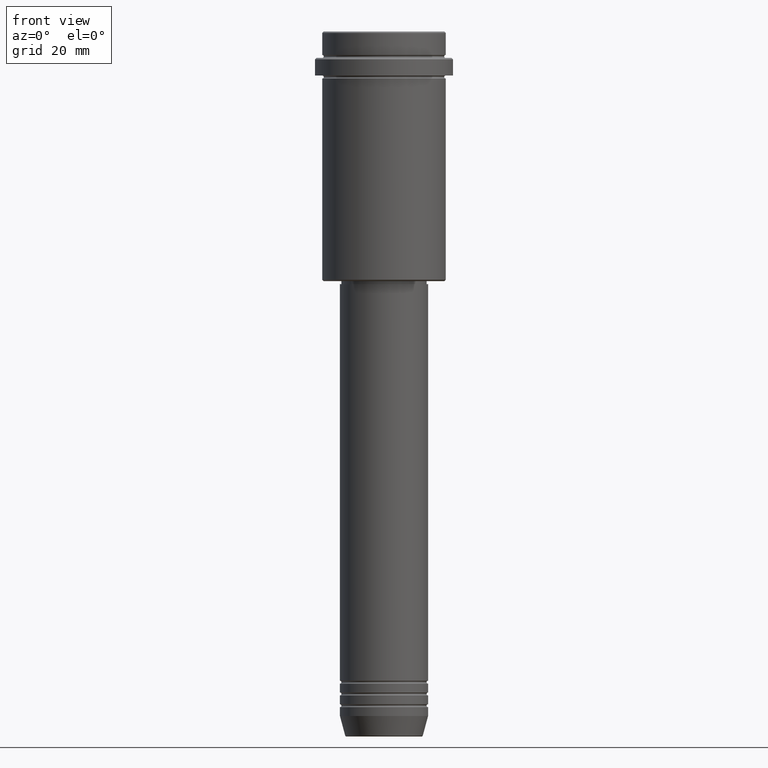
[diagram: clean part render]
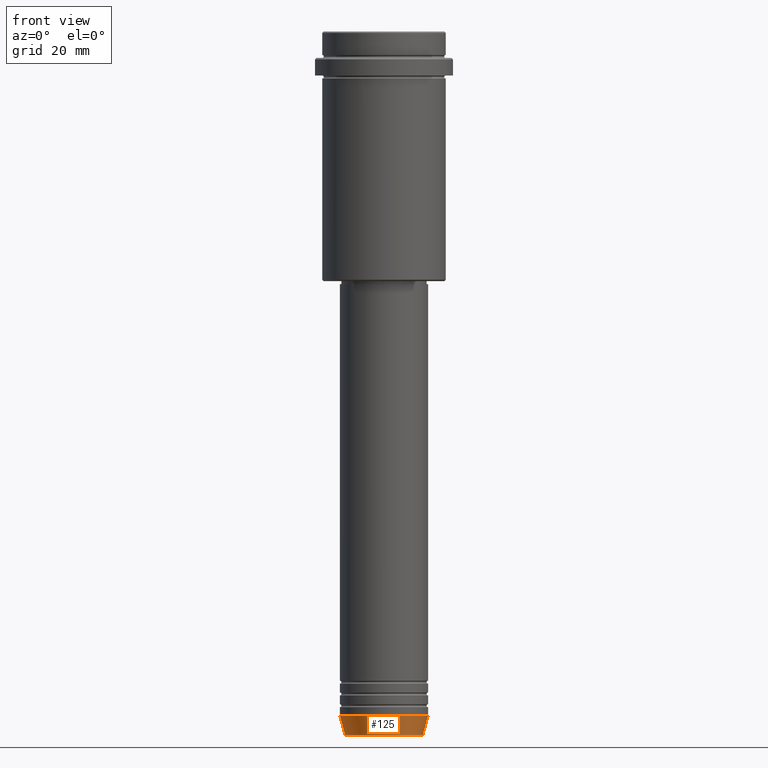
[diagram: same view with one face highlighted and labeled with its STEP entity id]
A machine part, front view. The second image highlights one B-rep face of the part: STEP entity #125.
In plain terms, the highlighted conical surface has half-angle 15 deg.
Its self-contained STEP definition (entity closure, byte-faithful):
#6 = VERTEX_POINT ( 'NONE', #627 ) ;
#13 = CARTESIAN_POINT ( 'NONE',  ( 0.000000000000000000, 0.000000000000000000, -232.9999999999999716 ) ) ;
#16 = CARTESIAN_POINT ( 'NONE',  ( 13.22365507213719660, 0.000000000000000000, -239.6294095225512422 ) ) ;
#68 = EDGE_CURVE ( 'NONE', #696, #6, #1259, .T. ) ;
#69 = CIRCLE ( 'NONE', #1071, 13.22365507213719660 ) ;
#125 = ADVANCED_FACE ( 'NONE', ( #625 ), #262, .T. ) ;
#182 = CARTESIAN_POINT ( 'NONE',  ( -15.00000000000000000, 1.836970198721029589E-15, -232.9999999999999716 ) ) ;
#216 = ORIENTED_EDGE ( 'NONE', *, *, #68, .F. ) ;
#226 = VECTOR ( 'NONE', #1389, 1000.000000000000114 ) ;
#238 = DIRECTION ( 'NONE',  ( -0.000000000000000000, -0.000000000000000000, 1.000000000000000000 ) ) ;
#256 = EDGE_LOOP ( 'NONE', ( #216, #1246, #345, #720 ) ) ;
#262 = CONICAL_SURFACE ( 'NONE', #288, 15.00000000000000000, 0.2617993877991497964 ) ;
#288 = AXIS2_PLACEMENT_3D ( 'NONE', #636, #839, #762 ) ;
#331 = CARTESIAN_POINT ( 'NONE',  ( 15.00000000000000000, 0.000000000000000000, -232.9999999999999716 ) ) ;
#345 = ORIENTED_EDGE ( 'NONE', *, *, #1060, .T. ) ;
#351 = DIRECTION ( 'NONE',  ( 0.2588190451025210725, 0.000000000000000000, 0.9659258262890680902 ) ) ;
#444 = DIRECTION ( 'NONE',  ( 1.000000000000000000, 0.000000000000000000, 0.000000000000000000 ) ) ;
#445 = CARTESIAN_POINT ( 'NONE',  ( 15.00000000000000000, 0.000000000000000000, -232.9999999999999716 ) ) ;
#481 = VERTEX_POINT ( 'NONE', #445 ) ;
#550 = CARTESIAN_POINT ( 'NONE',  ( 0.000000000000000000, 0.000000000000000000, -239.6294095225512422 ) ) ;
#625 = FACE_OUTER_BOUND ( 'NONE', #256, .T. ) ;
#627 = CARTESIAN_POINT ( 'NONE',  ( -15.00000000000000000, 1.836970198721029589E-15, -232.9999999999999716 ) ) ;
#636 = CARTESIAN_POINT ( 'NONE',  ( 0.000000000000000000, 0.000000000000000000, -232.9999999999999716 ) ) ;
#646 = DIRECTION ( 'NONE',  ( -0.000000000000000000, -0.000000000000000000, 1.000000000000000000 ) ) ;
#696 = VERTEX_POINT ( 'NONE', #779 ) ;
#720 = ORIENTED_EDGE ( 'NONE', *, *, #1062, .F. ) ;
#762 = DIRECTION ( 'NONE',  ( 1.000000000000000000, 0.000000000000000000, 0.000000000000000000 ) ) ;
#779 = CARTESIAN_POINT ( 'NONE',  ( -13.22365507213719837, 1.728200442216588780E-15, -239.6294095225512422 ) ) ;
#839 = DIRECTION ( 'NONE',  ( -0.000000000000000000, -0.000000000000000000, 1.000000000000000000 ) ) ;
#843 = EDGE_CURVE ( 'NONE', #696, #1086, #69, .T. ) ;
#936 = VECTOR ( 'NONE', #351, 1000.000000000000114 ) ;
#1060 = EDGE_CURVE ( 'NONE', #1086, #481, #1100, .T. ) ;
#1062 = EDGE_CURVE ( 'NONE', #6, #481, #1369, .T. ) ;
#1071 = AXIS2_PLACEMENT_3D ( 'NONE', #550, #646, #1082 ) ;
#1082 = DIRECTION ( 'NONE',  ( 1.000000000000000000, 0.000000000000000000, 0.000000000000000000 ) ) ;
#1086 = VERTEX_POINT ( 'NONE', #16 ) ;
#1100 = LINE ( 'NONE', #331, #936 ) ;
#1205 = AXIS2_PLACEMENT_3D ( 'NONE', #13, #238, #444 ) ;
#1246 = ORIENTED_EDGE ( 'NONE', *, *, #843, .T. ) ;
#1259 = LINE ( 'NONE', #182, #226 ) ;
#1369 = CIRCLE ( 'NONE', #1205, 15.00000000000000000 ) ;
#1389 = DIRECTION ( 'NONE',  ( -0.2588190451025210725, 3.169619151431769255E-17, 0.9659258262890680902 ) ) ;